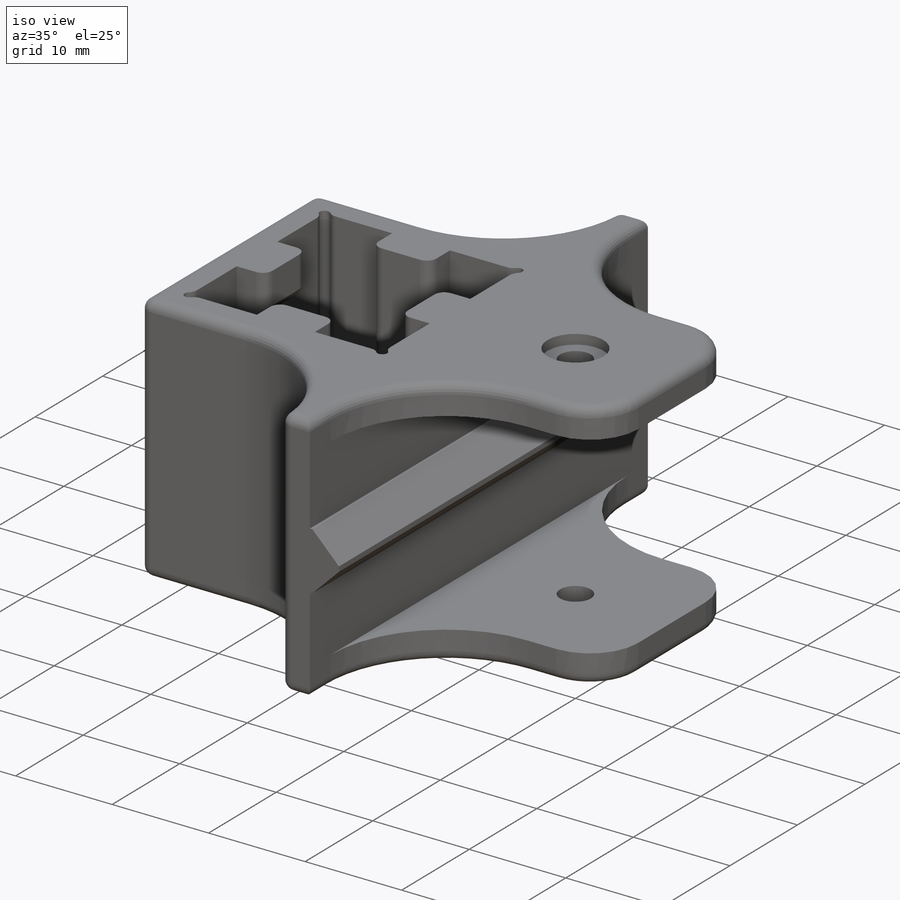
[diagram: iso view]
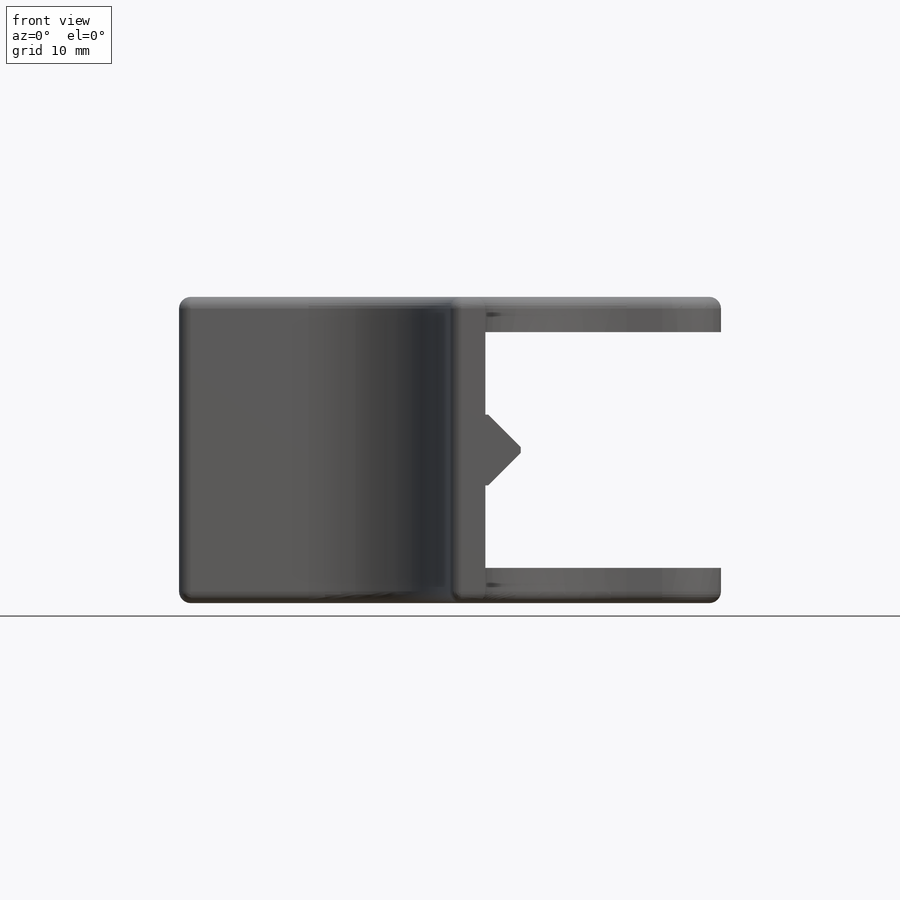
[diagram: front view]
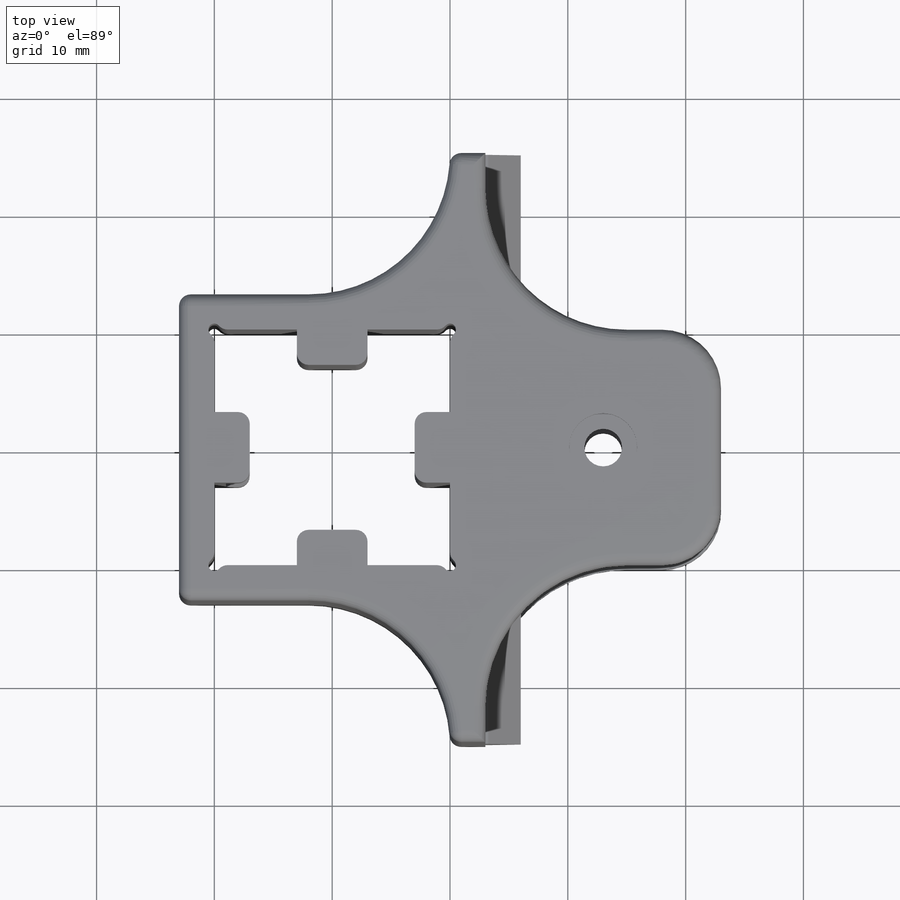
[diagram: top view]
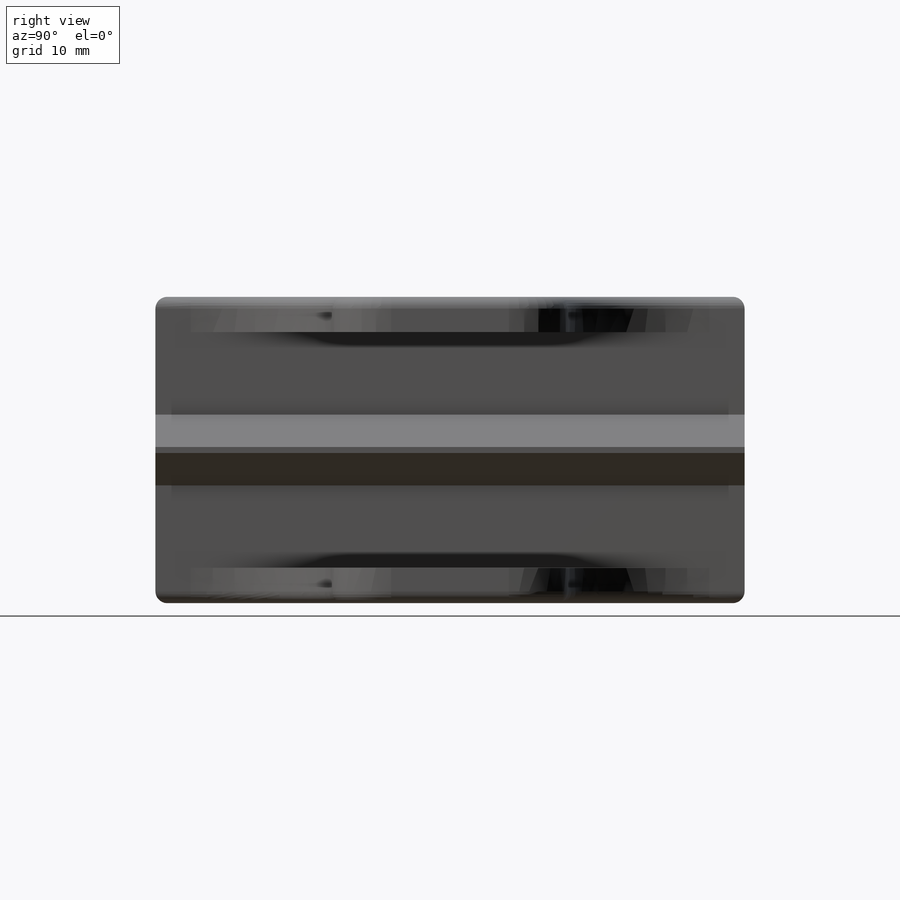
[diagram: right view]
SOLIDWORKS PART (.sldprt)
format: sldprt  version: not decoded by parser v0  size: 1,093,632 bytes
history: native  units: mm
features: sketch x9, cut_extrude x7, fillet x5, extrude x2, chamfer x2, material x1, pattern_linear x1 (+13 scaffold rows collapsed)
feature tree (40):
  scaffold x13  (default folders/planes/origin — collapsed)
  material  "Material <not specified>"
  sketch  "Sketch1"  dims[c1.D8=3.2mm c1.D1=~13.851248mm c2.D1=45.0deg c3.D1=20.0mm c3.D2=6.0mm c3.D3=3.0mm c3.D4=3.0mm c3.D5=3.0mm c3.D6=20.0mm c4.D5=3.0mm c4.D6=50.0mm c4.D7=20.0mm]
  extrude  "Boss-Extrude1"  Depth=26mm
  sketch  "Sketch9"  dims[D1=1.0mm]
  cut_extrude  "Cut-Extrude6"  [1 undecoded]
  sketch  "Sketch3"  dims[D1=3.0mm]
  cut_extrude  "Cut-Extrude1"  Depth=20mm
  sketch  "Sketch6"  dims[D1=5.8mm]
  cut_extrude  "Cut-Extrude4"  Depth=1mm
  sketch  "Sketch7"  dims[D1=5.8mm]
  cut_extrude  "Cut-Extrude5"  Depth=1mm
  fillet  "Fillet1"  Radius=12mm
  fillet  "Fillet3"  Radius=5mm
  sketch  "Sketch4"  dims[D2=3.2mm D1=13.0mm D3=13.0mm]
  cut_extrude  "Cut-Extrude2"  [1 undecoded]
  sketch  "Sketch5"  dims[D1=5.8mm]
  cut_extrude  "Cut-Extrude3"  Depth=1mm
  sketch  "Sketch8"  dims[D1=13.0mm D2=6.0mm]
  extrude  "Boss-Extrude2"  Depth=3mm
  chamfer  "Chamfer1"  Distance=2.75mm Angle=45deg
  sketch  "Sketch10"  dims[D1=16.0mm]
  cut_extrude  "Cut-Extrude7"  Depth=2mm
  chamfer  "Chamfer2"  Distance=1.75mm Angle=45deg
  pattern_linear  "LPattern10"  Count1=2 Count2=1 Spacing1=20mm Spacing2=10mm
  fillet  "Fillet4"  Radius=1mm
  fillet  "Fillet5"  Radius=1mm
  fillet  "Fillet6"  Radius=1mm
decode coverage: 24 of 26 modeling features carry decoded parameters
note: ~ marks probable driven/reference dimensions
note: 2 parameter values undecoded
note: suppression state not decoded; provenance and decode notes live in map.json
